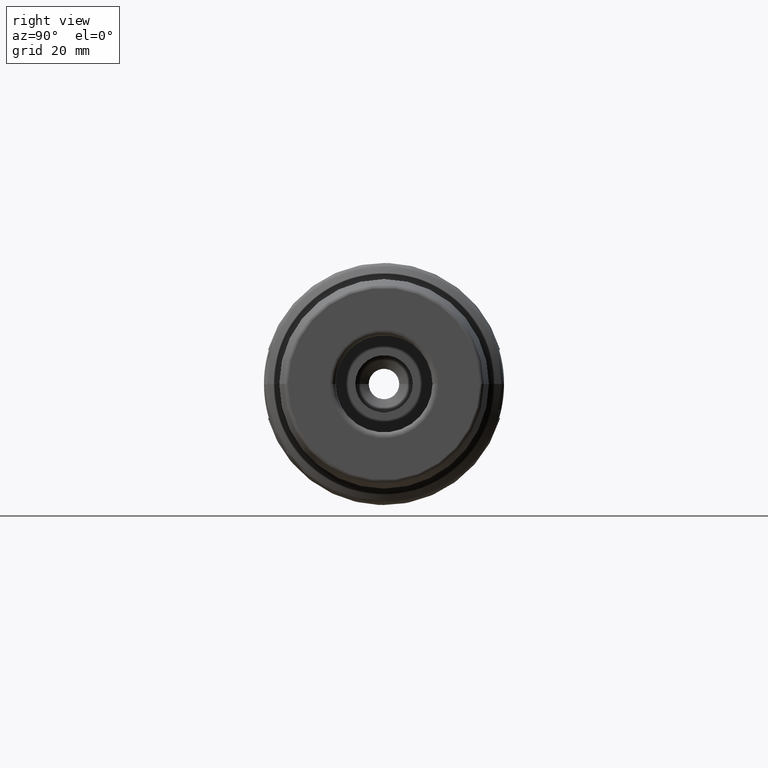
[diagram: clean part render]
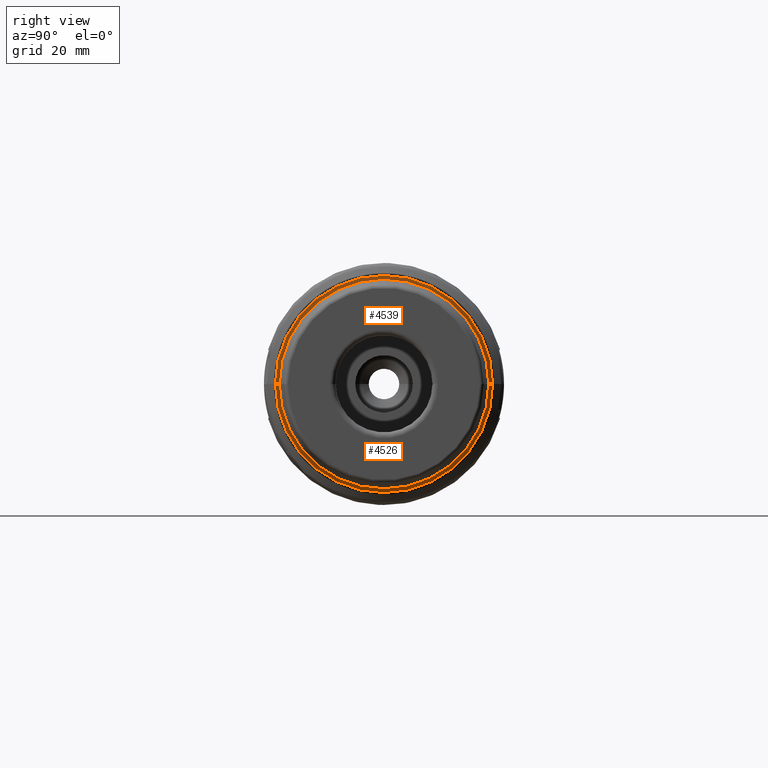
[diagram: same view with one multi-face feature highlighted, each face labeled with its STEP entity id]
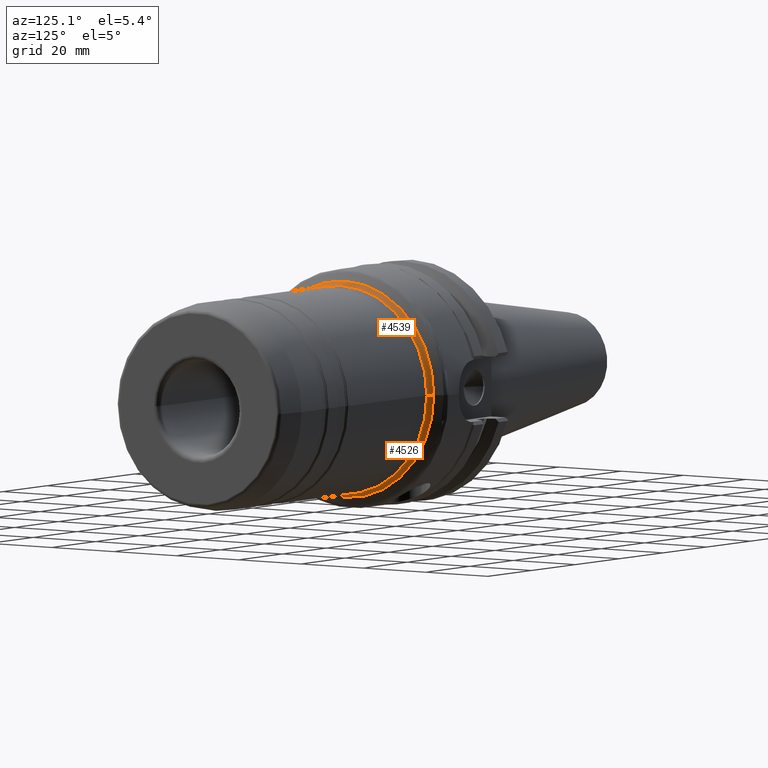
[diagram: same view with one multi-face feature highlighted, each face labeled with its STEP entity id]
A machine part, right view. The highlighted faces form ONE feature: a constant-radius fillet chain: 2 tangent blend faces with common blend radius 2 mm. The faces share edges in the B-rep.
A second angle (auxiliary view) of the same feature is appended — it is thin or edge-on in the first view.
Their STEP definitions:
[1] entity #4539 (Torus):
#1474=CARTESIAN_POINT('',(3.625470053835E1,2.95E1,0.E0));
#1475=DIRECTION('',(0.E0,0.E0,1.E0));
#1476=DIRECTION('',(-8.660254037844E-1,-5.E-1,0.E0));
#1477=AXIS2_PLACEMENT_3D('',#1474,#1475,#1476);
#1484=CARTESIAN_POINT('',(3.625470053835E1,-2.95E1,0.E0));
#1485=DIRECTION('',(0.E0,0.E0,-1.E0));
#1486=DIRECTION('',(-8.660254037844E-1,5.E-1,0.E0));
#1487=AXIS2_PLACEMENT_3D('',#1484,#1485,#1486);
#1489=CARTESIAN_POINT('',(3.452264973078E1,0.E0,0.E0));
#1490=DIRECTION('',(1.E0,0.E0,0.E0));
#1491=DIRECTION('',(0.E0,1.E0,0.E0));
#1492=AXIS2_PLACEMENT_3D('',#1489,#1490,#1491);
#1494=CARTESIAN_POINT('',(3.625470053835E1,0.E0,0.E0));
#1495=DIRECTION('',(1.E0,0.E0,0.E0));
#1496=DIRECTION('',(0.E0,1.E0,0.E0));
#1497=AXIS2_PLACEMENT_3D('',#1494,#1495,#1496);
#2753=CARTESIAN_POINT('',(3.452264973078E1,2.85E1,0.E0));
#2755=VERTEX_POINT('',#2753);
#2756=CARTESIAN_POINT('',(3.625470053835E1,2.75E1,0.E0));
#2757=VERTEX_POINT('',#2756);
#2793=CARTESIAN_POINT('',(3.452264973078E1,-2.85E1,0.E0));
#2795=VERTEX_POINT('',#2793);
#2796=CARTESIAN_POINT('',(3.625470053835E1,-2.75E1,0.E0));
#2797=VERTEX_POINT('',#2796);
#4527=CARTESIAN_POINT('',(3.625470053835E1,0.E0,0.E0));
#4528=DIRECTION('',(1.E0,0.E0,0.E0));
#4529=DIRECTION('',(0.E0,-1.E0,0.E0));
#4530=AXIS2_PLACEMENT_3D('',#4527,#4528,#4529);
#4531=TOROIDAL_SURFACE('',#4530,2.95E1,2.E0);
#4532=ORIENTED_EDGE('',*,*,#4517,.T.);
#4534=ORIENTED_EDGE('',*,*,#4533,.T.);
#4535=ORIENTED_EDGE('',*,*,#4520,.F.);
#4536=ORIENTED_EDGE('',*,*,#4491,.F.);
#4537=EDGE_LOOP('',(#4532,#4534,#4535,#4536));
#4538=FACE_OUTER_BOUND('',#4537,.F.);
#4539=ADVANCED_FACE('',(#4538),#4531,.F.);
#1478=CIRCLE('',#1477,2.E0);
#1488=CIRCLE('',#1487,2.E0);
#1493=CIRCLE('',#1492,2.85E1);
#1498=CIRCLE('',#1497,2.75E1);
#4491=EDGE_CURVE('',#2755,#2795,#1493,.T.);
#4517=EDGE_CURVE('',#2755,#2757,#1478,.T.);
#4520=EDGE_CURVE('',#2795,#2797,#1488,.T.);
#4533=EDGE_CURVE('',#2757,#2797,#1498,.T.);
[2] entity #4526 (Torus):
#1474=CARTESIAN_POINT('',(3.625470053835E1,2.95E1,0.E0));
#1475=DIRECTION('',(0.E0,0.E0,1.E0));
#1476=DIRECTION('',(-8.660254037844E-1,-5.E-1,0.E0));
#1477=AXIS2_PLACEMENT_3D('',#1474,#1475,#1476);
#1479=CARTESIAN_POINT('',(3.452264973078E1,0.E0,0.E0));
#1480=DIRECTION('',(-1.E0,0.E0,0.E0));
#1481=DIRECTION('',(0.E0,1.E0,0.E0));
#1482=AXIS2_PLACEMENT_3D('',#1479,#1480,#1481);
#1484=CARTESIAN_POINT('',(3.625470053835E1,-2.95E1,0.E0));
#1485=DIRECTION('',(0.E0,0.E0,-1.E0));
#1486=DIRECTION('',(-8.660254037844E-1,5.E-1,0.E0));
#1487=AXIS2_PLACEMENT_3D('',#1484,#1485,#1486);
#1503=CARTESIAN_POINT('',(3.625470053835E1,0.E0,0.E0));
#1504=DIRECTION('',(-1.E0,0.E0,0.E0));
#1505=DIRECTION('',(0.E0,1.E0,0.E0));
#1506=AXIS2_PLACEMENT_3D('',#1503,#1504,#1505);
#2753=CARTESIAN_POINT('',(3.452264973078E1,2.85E1,0.E0));
#2755=VERTEX_POINT('',#2753);
#2756=CARTESIAN_POINT('',(3.625470053835E1,2.75E1,0.E0));
#2757=VERTEX_POINT('',#2756);
#2793=CARTESIAN_POINT('',(3.452264973078E1,-2.85E1,0.E0));
#2795=VERTEX_POINT('',#2793);
#2796=CARTESIAN_POINT('',(3.625470053835E1,-2.75E1,0.E0));
#2797=VERTEX_POINT('',#2796);
#4512=CARTESIAN_POINT('',(3.625470053835E1,0.E0,0.E0));
#4513=DIRECTION('',(1.E0,0.E0,0.E0));
#4514=DIRECTION('',(0.E0,-1.E0,0.E0));
#4515=AXIS2_PLACEMENT_3D('',#4512,#4513,#4514);
#4516=TOROIDAL_SURFACE('',#4515,2.95E1,2.E0);
#4518=ORIENTED_EDGE('',*,*,#4517,.F.);
#4519=ORIENTED_EDGE('',*,*,#4507,.T.);
#4521=ORIENTED_EDGE('',*,*,#4520,.T.);
#4523=ORIENTED_EDGE('',*,*,#4522,.F.);
#4524=EDGE_LOOP('',(#4518,#4519,#4521,#4523));
#4525=FACE_OUTER_BOUND('',#4524,.F.);
#4526=ADVANCED_FACE('',(#4525),#4516,.F.);
#1478=CIRCLE('',#1477,2.E0);
#1483=CIRCLE('',#1482,2.85E1);
#1488=CIRCLE('',#1487,2.E0);
#1507=CIRCLE('',#1506,2.75E1);
#4507=EDGE_CURVE('',#2755,#2795,#1483,.T.);
#4517=EDGE_CURVE('',#2755,#2757,#1478,.T.);
#4520=EDGE_CURVE('',#2795,#2797,#1488,.T.);
#4522=EDGE_CURVE('',#2757,#2797,#1507,.T.);